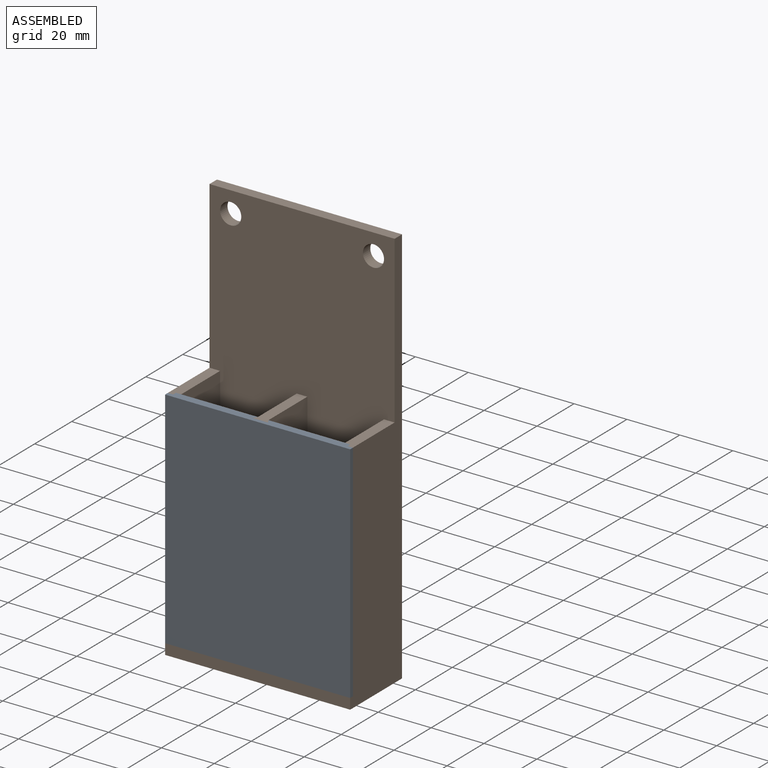
[diagram: assembled view]
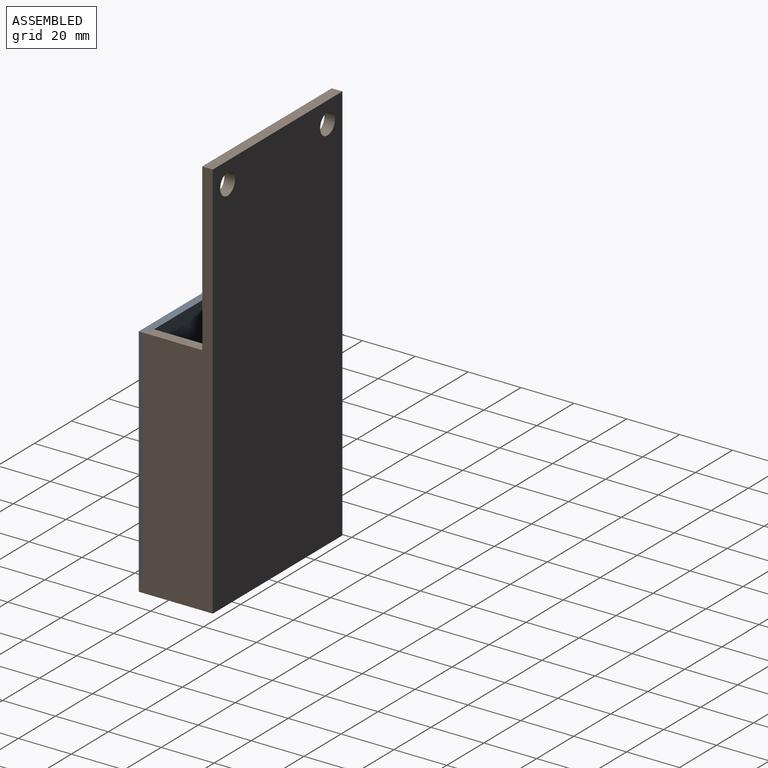
[diagram: assembled view, second angle]
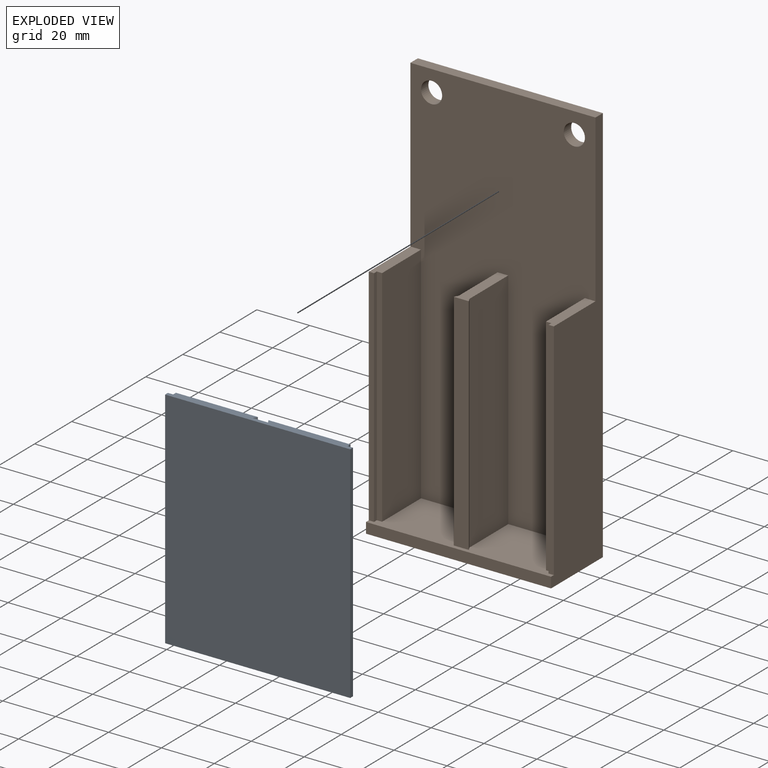
[diagram: exploded view]
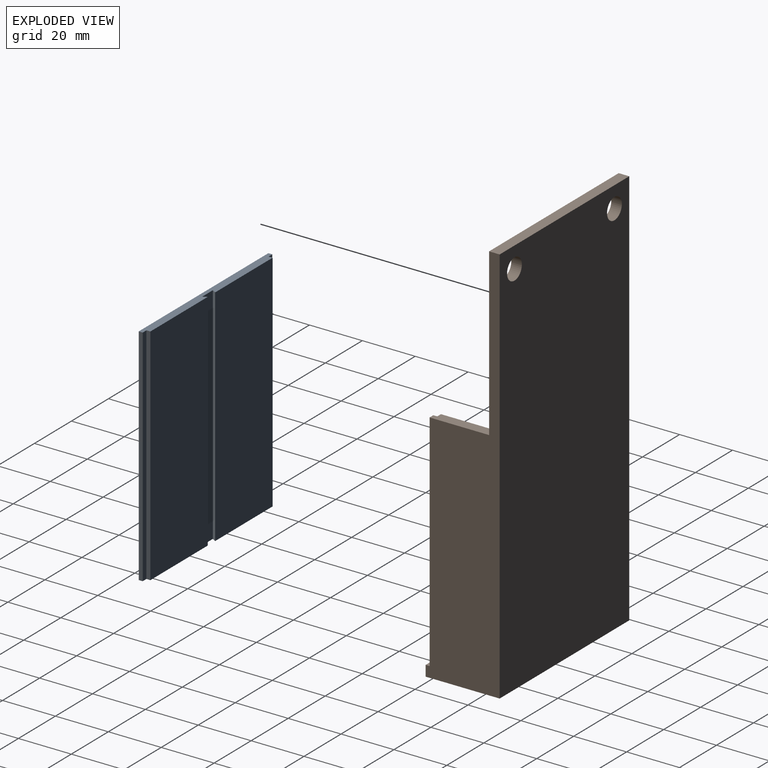
[diagram: exploded view, second angle]
ASSEMBLY  parts=2 mates=2
PART A: 14 faces, bbox 70x85x3 mm
  f0: plane 85x31mm, normal (0,0,1), area 2635mm2, adj f1,f11,f12,f13
  f1: plane 85x1.5mm, normal (-0.87,0,-0.5), area 147.2mm2, adj f0,f2,f12,f13
  f2: plane 85x5.73mm, normal (0,0,1), area 487.2mm2, adj f1,f3,f12,f13
  f3: plane 85x1.5mm, normal (0.87,0,-0.5), area 147.2mm2, adj f2,f4,f12,f13
  f4: plane 85x31mm, normal (0,0,1), area 2635mm2, adj f3,f5,f12,f13
  f5: plane 85x1.5mm, normal (-1,0,0), area 127.5mm2, adj f4,f6,f12,f13
  f6: plane 85x2mm, normal (0,0,1), area 170mm2, adj f5,f7,f12,f13
  f7: plane 85x1.5mm, normal (-1,0,0), area 127.5mm2, adj f6,f8,f12,f13
  f8: plane 85x70mm, normal (0,0,-1), area 5950mm2, adj f7,f9,f12,f13
  f9: plane 85x1.5mm, normal (1,0,0), area 127.5mm2, adj f8,f10,f12,f13
  f10: plane 85x2mm, normal (0,0,1), area 170mm2, adj f9,f11,f12,f13
  f11: plane 85x1.5mm, normal (1,0,0), area 127.5mm2, adj f0,f10,f12,f13
  f12: plane 70x3mm, normal (0,-1,0), area 196.7mm2, adj f0,f1,f2,f3,f4,f5,f6,f7
  f13: plane 70x3mm, normal (0,1,0), area 196.7mm2, adj f0,f1,f2,f3,f4,f5,f6,f7
PART B: 26 faces, bbox 70x28x151.8 mm
  f0: plane 70x24mm, normal (0,0,1), area 1414.7mm2, adj f1,f2,f3,f8,f10,f12,f13,f14
  f1: plane 85x2mm, normal (0,-1,0), area 170mm2, adj f0,f5,f15,f24
  f2: plane 85x2mm, normal (0,-1,0), area 170mm2, adj f0,f11,f13,f23
  f3: plane 147.8x70mm, normal (0,-1,0), area 9225.5mm2, adj f0,f5,f6,f7,f8,f10,f11,f12
  f4: plane 151.8x70mm, normal (0,1,0), area 10525.5mm2, adj f7,f8,f9,f10,f16,f17
  f5: plane 22.5x4mm, normal (0,0,1), area 87mm2, adj f1,f3,f10,f15,f24,f25
  f6: plane 22.5x5.73mm, normal (0,0,1), area 91.3mm2, adj f3,f12,f14,f19,f20,f21
  f7: plane 70x4mm, normal (0,0,1), area 280mm2, adj f3,f4,f8,f10
  f8: plane 151.8x28mm, normal (-1,0,0), area 2615.7mm2, adj f0,f3,f4,f7,f9,f11,f18,f22
  f9: plane 70x28mm, normal (0,0,-1), area 1960mm2, adj f4,f8,f10,f18
  f10: plane 151.8x28mm, normal (1,0,0), area 2615.7mm2, adj f0,f3,f4,f5,f7,f9,f18,f25
  f11: plane 22.5x4mm, normal (0,0,1), area 87mm2, adj f2,f3,f8,f13,f22,f23
  f12: plane 85x21mm, normal (-1,0,0), area 1785mm2, adj f0,f3,f6,f19
  f13: plane 85x21mm, normal (1,0,0), area 1785mm2, adj f0,f2,f3,f11
  f14: plane 85x21mm, normal (1,0,0), area 1785mm2, adj f0,f3,f6,f21
  f15: plane 85x21mm, normal (-1,0,0), area 1785mm2, adj f0,f1,f3,f5
  f16: cylinder r=4mm len=8mm, axis (0,-1,0), area 100.5mm2, adj f3,f4
  f17: cylinder r=4mm len=8mm, axis (0,-1,0), area 100.5mm2, adj f3,f4
  f18: plane 70x4mm, normal (0,-1,0), area 280mm2, adj f0,f8,f9,f10
  f19: plane 85x1.5mm, normal (-0.87,0.5,0), area 147.2mm2, adj f0,f6,f12,f20
  f20: plane 85x5.73mm, normal (0,-1,0), area 487.2mm2, adj f0,f6,f19,f21
  f21: plane 85x1.5mm, normal (0.87,0.5,0), area 147.2mm2, adj f0,f6,f14,f20
  f22: plane 85x2mm, normal (0,-1,0), area 170mm2, adj f0,f8,f11,f23
  f23: plane 85x1.5mm, normal (1,0,0), area 127.5mm2, adj f0,f2,f11,f22
  f24: plane 85x1.5mm, normal (-1,0,0), area 127.5mm2, adj f0,f1,f5,f25
  f25: plane 85x2mm, normal (0,-1,0), area 170mm2, adj f0,f5,f10,f24
PLACE A rot(axis=(-1,0,0),90deg) t=(0,-26.5,-71.9)mm
PLACE B at identity fixed
MATE planar A.f2 <-> B.f20  axis (0,1,0) through (0,-26.5,-29.4)mm
MATE slider A.f2 <-> B.f20  axis (0,1,0) through (0,-26.5,-29.4)mm
